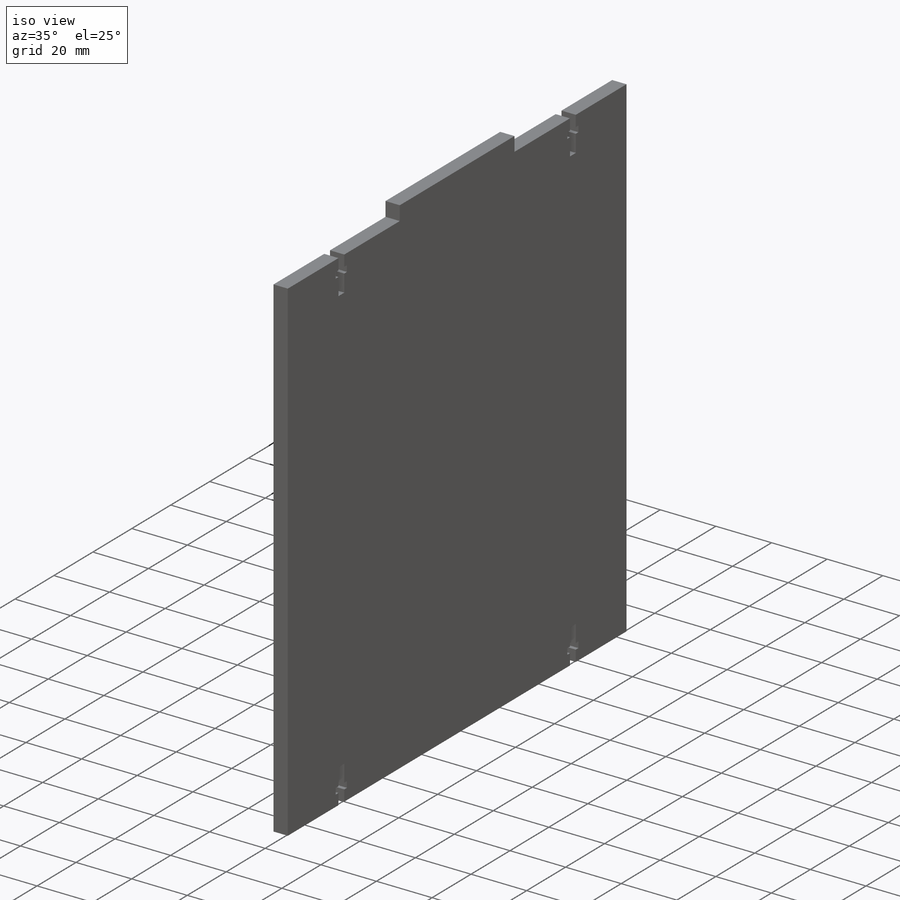
[diagram: iso view]
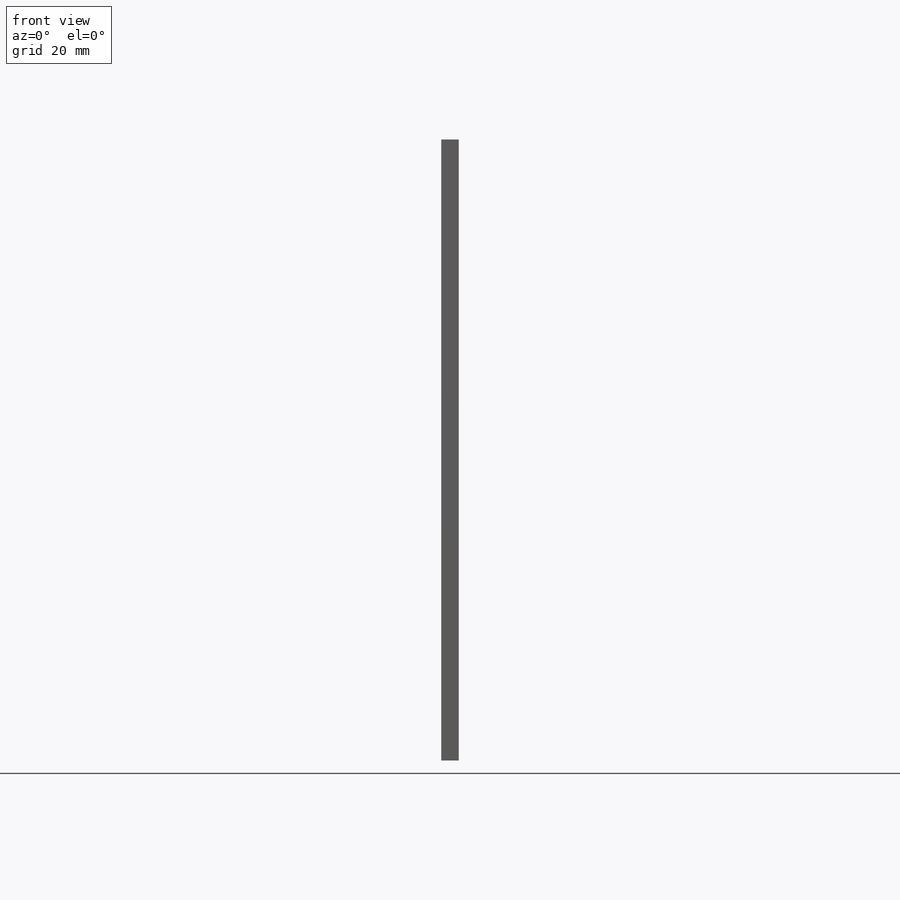
[diagram: front view]
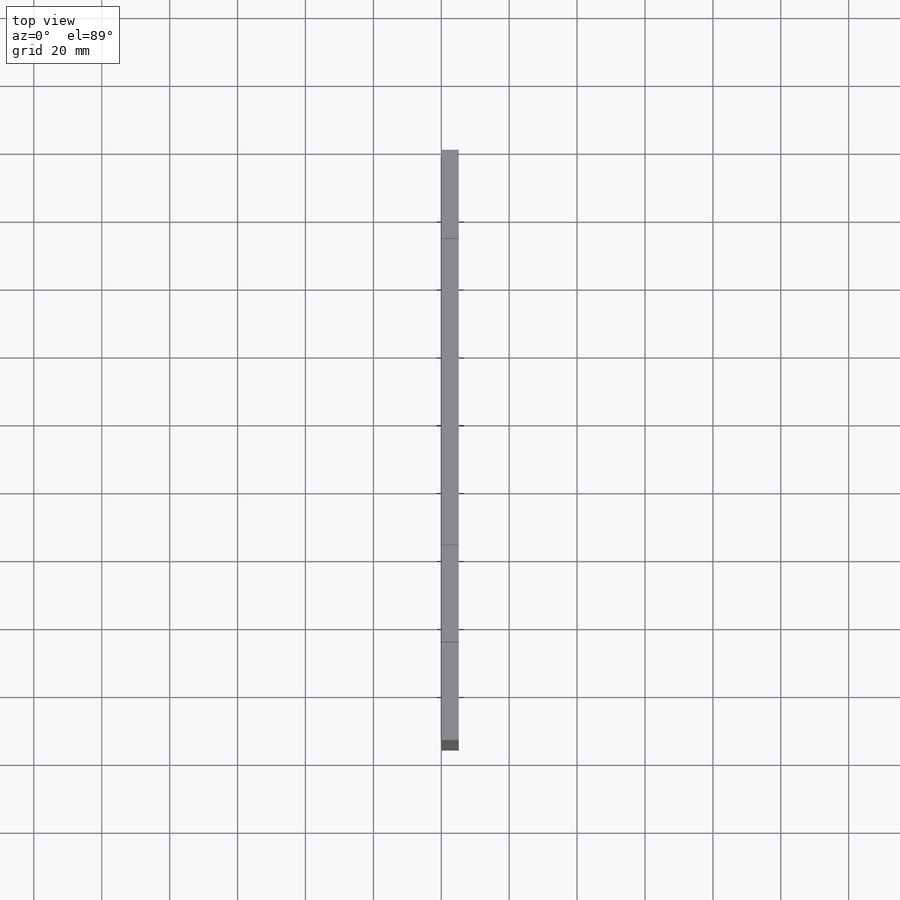
[diagram: top view]
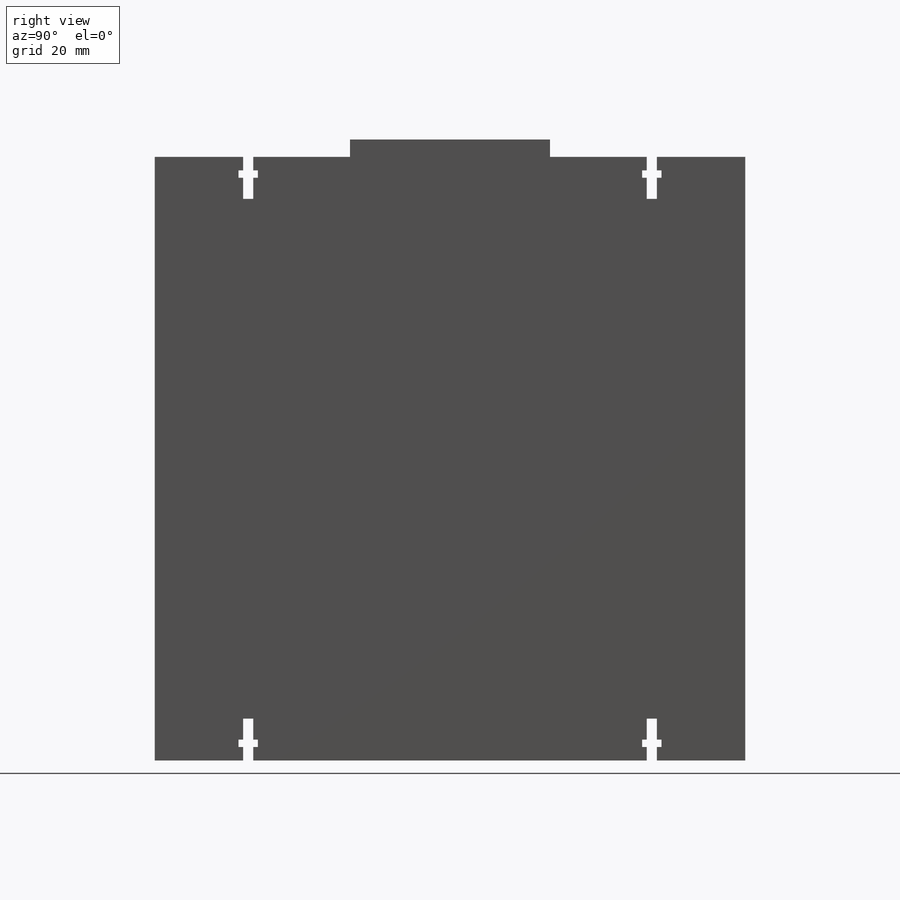
[diagram: right view]
SOLIDWORKS PART (.sldprt)
format: sldprt  version: not decoded by parser v0  size: 244,736 bytes
history: native  units: mm
features: sketch x3, extrude x2, pattern_linear x2, material x1, cut_extrude x1, plane x1, mirror x1 (+11 scaffold rows collapsed)
feature tree (22):
  scaffold x11  (default folders/planes/origin — collapsed)
  material  "Material <not specified>"
  sketch  "Sketch1"  dims[D1=173.89mm D2=177.8mm]
  extrude  "Main"  Depth=5.13mm
  sketch  "Sketch2"  dims[D1=2.167mm D2=2.997mm D3=2.997mm D4=3.995mm D5=3.995mm D6=1.359mm D7=1.359mm D8=6.207mm D9=6.207mm D10=1.359mm D12=26.005mm]
  cut_extrude  "t-slot"  Depth=5.13mm
  pattern_linear  "LPattern2"  Count1=2 Count2=1 Spacing1=118.88mm Spacing2=50mm
  plane  "Plane1"
  mirror  "Mirror1"
  pattern_linear  "Axis2"  [2 undecoded]
  sketch  "Sketch6"  dims[D1=86.945mm D2=58.88mm]
  extrude  "Tooth"  Depth=5.13mm
decode coverage: 7 of 9 modeling features carry decoded parameters
note: 2 parameter values undecoded
note: suppression state not decoded; provenance and decode notes live in map.json
